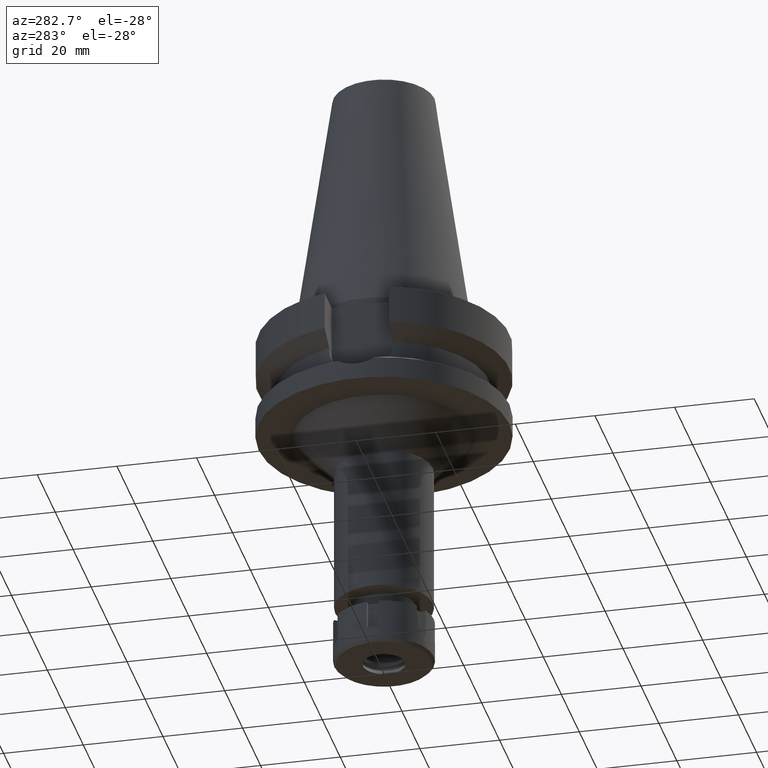
[diagram: clean part render]
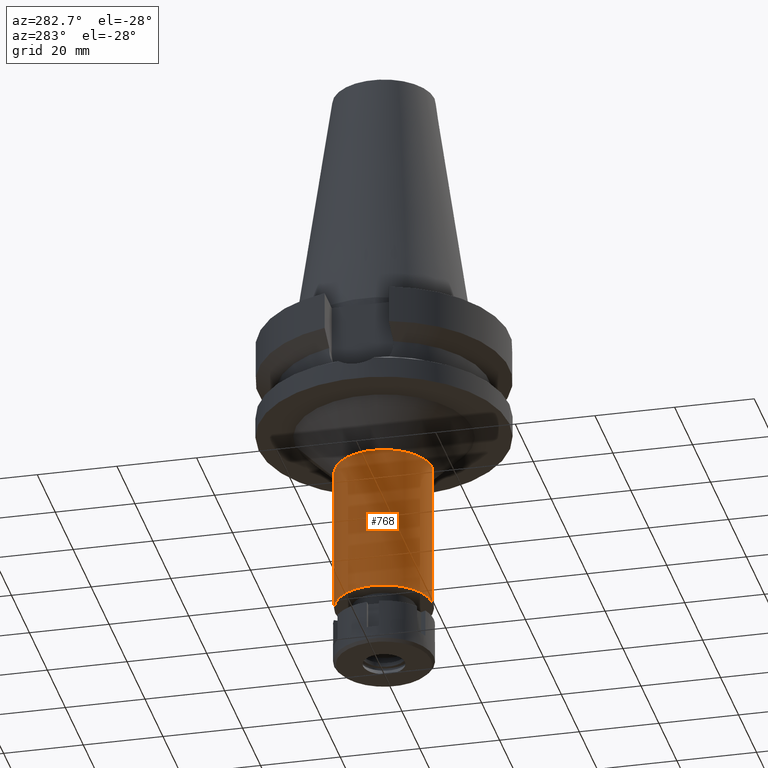
[diagram: same view with one face highlighted and labeled with its STEP entity id]
A machine part, auxiliary view. The second image highlights one B-rep face of the part: STEP entity #768.
In plain terms, the highlighted cylindrical surface (partial cylindrical patch) has radius 12.25 mm, axis along (0, 0, -1).
Its self-contained STEP definition (entity closure, byte-faithful):
#29 = CIRCLE ( 'NONE', #518, 12.25000000000000000 ) ;
#84 = AXIS2_PLACEMENT_3D ( 'NONE', #3088, #2004, #3350 ) ;
#96 = CARTESIAN_POINT ( 'NONE',  ( 0.0000000000000000000, -12.25000000000000000, -74.50000000000000000 ) ) ;
#294 = VERTEX_POINT ( 'NONE', #445 ) ;
#303 = CARTESIAN_POINT ( 'NONE',  ( 0.0000000000000000000, 0.0000000000000000000, -37.00000000000000000 ) ) ;
#445 = CARTESIAN_POINT ( 'NONE',  ( 0.0000000000000000000, -12.25000000000000000, -37.00000000000000000 ) ) ;
#466 = CIRCLE ( 'NONE', #2524, 12.25000000000000000 ) ;
#467 = EDGE_LOOP ( 'NONE', ( #2598, #3174, #1570, #1419 ) ) ;
#494 = EDGE_CURVE ( 'NONE', #1175, #2666, #466, .T. ) ;
#518 = AXIS2_PLACEMENT_3D ( 'NONE', #303, #2540, #2264 ) ;
#768 = ADVANCED_FACE ( 'NONE', ( #1736 ), #3125, .T. ) ;
#848 = EDGE_CURVE ( 'NONE', #294, #1367, #29, .T. ) ;
#895 = VECTOR ( 'NONE', #2700, 1000.000000000000000 ) ;
#1012 = DIRECTION ( 'NONE',  ( 0.0000000000000000000, 0.0000000000000000000, 1.000000000000000000 ) ) ;
#1072 = LINE ( 'NONE', #2124, #895 ) ;
#1141 = EDGE_CURVE ( 'NONE', #1367, #1175, #1072, .T. ) ;
#1175 = VERTEX_POINT ( 'NONE', #3030 ) ;
#1304 = DIRECTION ( 'NONE',  ( 0.0000000000000000000, 0.0000000000000000000, -1.000000000000000000 ) ) ;
#1367 = VERTEX_POINT ( 'NONE', #1424 ) ;
#1419 = ORIENTED_EDGE ( 'NONE', *, *, #1141, .T. ) ;
#1424 = CARTESIAN_POINT ( 'NONE',  ( 0.0000000000000000000, 12.25000000000000000, -37.00000000000000000 ) ) ;
#1570 = ORIENTED_EDGE ( 'NONE', *, *, #848, .T. ) ;
#1736 = FACE_OUTER_BOUND ( 'NONE', #467, .T. ) ;
#2004 = DIRECTION ( 'NONE',  ( 0.0000000000000000000, 0.0000000000000000000, -1.000000000000000000 ) ) ;
#2089 = VECTOR ( 'NONE', #1304, 1000.000000000000000 ) ;
#2124 = CARTESIAN_POINT ( 'NONE',  ( 0.0000000000000000000, 12.25000000000000000, -37.00000000000000000 ) ) ;
#2264 = DIRECTION ( 'NONE',  ( 0.0000000000000000000, -1.000000000000000000, 0.0000000000000000000 ) ) ;
#2355 = CARTESIAN_POINT ( 'NONE',  ( 0.0000000000000000000, 2.117046921685999950E-14, -74.50000000000000000 ) ) ;
#2524 = AXIS2_PLACEMENT_3D ( 'NONE', #2355, #1012, #2963 ) ;
#2540 = DIRECTION ( 'NONE',  ( 0.0000000000000000000, 0.0000000000000000000, -1.000000000000000000 ) ) ;
#2598 = ORIENTED_EDGE ( 'NONE', *, *, #494, .T. ) ;
#2666 = VERTEX_POINT ( 'NONE', #96 ) ;
#2688 = EDGE_CURVE ( 'NONE', #294, #2666, #3234, .T. ) ;
#2700 = DIRECTION ( 'NONE',  ( 0.0000000000000000000, 0.0000000000000000000, -1.000000000000000000 ) ) ;
#2963 = DIRECTION ( 'NONE',  ( 0.0000000000000000000, 1.000000000000000000, 0.0000000000000000000 ) ) ;
#3030 = CARTESIAN_POINT ( 'NONE',  ( 0.0000000000000000000, 12.25000000000000000, -74.50000000000000000 ) ) ;
#3088 = CARTESIAN_POINT ( 'NONE',  ( 0.0000000000000000000, 2.117046921685999950E-14, 72.87000000000000455 ) ) ;
#3125 = CYLINDRICAL_SURFACE ( 'NONE', #84, 12.25000000000000000 ) ;
#3174 = ORIENTED_EDGE ( 'NONE', *, *, #2688, .F. ) ;
#3195 = CARTESIAN_POINT ( 'NONE',  ( 0.0000000000000000000, -12.25000000000000000, -37.00000000000000000 ) ) ;
#3234 = LINE ( 'NONE', #3195, #2089 ) ;
#3350 = DIRECTION ( 'NONE',  ( 0.0000000000000000000, -1.000000000000000000, 0.0000000000000000000 ) ) ;